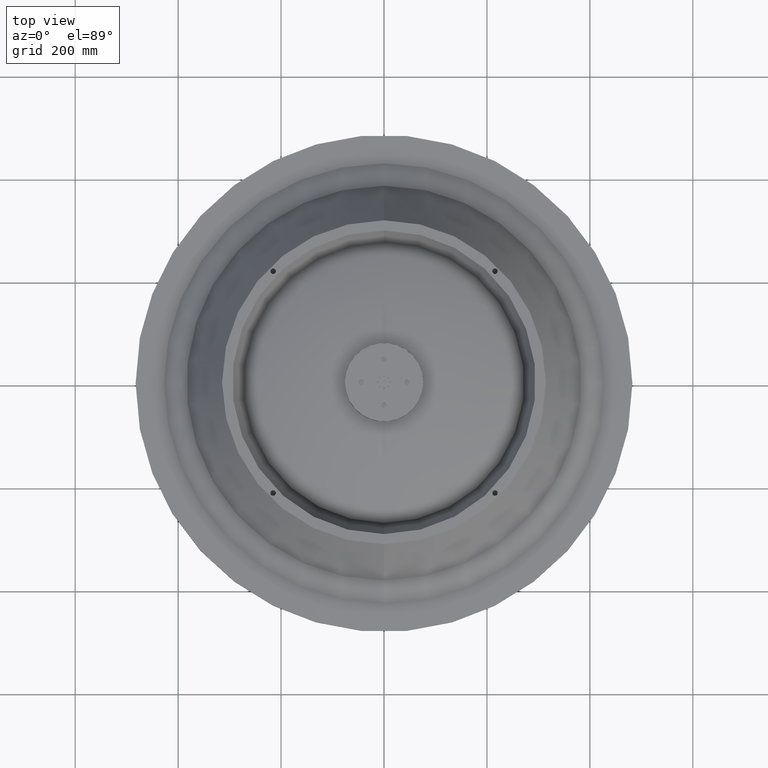
[diagram: clean part render]
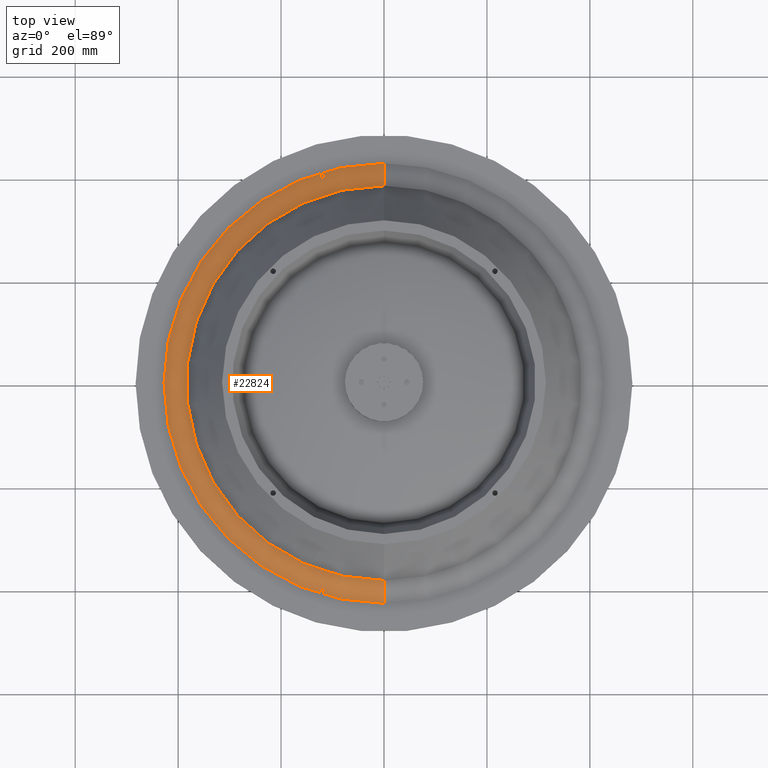
[diagram: same view with one face highlighted and labeled with its STEP entity id]
A machine part, top view. The second image highlights one B-rep face of the part: STEP entity #22824.
In plain terms, the highlighted face is a freeform B-spline surface patch.
Its self-contained STEP definition (entity closure, byte-faithful):
#158 = EDGE_CURVE ( 'NONE', #45077, #38707, #12042, .T. ) ;
#951 = DIRECTION ( 'NONE',  ( 1.000000000000000000, 0.0000000000000000000, 0.0000000000000000000 ) ) ;
#2391 = EDGE_LOOP ( 'NONE', ( #4343, #15211, #7643, #36995 ) ) ;
#2535 = CARTESIAN_POINT ( 'NONE',  ( -30.99803846209322000, -15.49901923104660600, -3.463378942795172700 ) ) ;
#2831 = CARTESIAN_POINT ( 'NONE',  ( -33.45328065928504200, -16.72664032964251000, -4.129492428027307800 ) ) ;
#2982 = CARTESIAN_POINT ( 'NONE',  ( -3.747250116607733500E-015, -15.29930964265253800, -3.360437510372523900 ) ) ;
#3114 = CARTESIAN_POINT ( 'NONE',  ( 0.0000000000000000000, 15.09999999999999400, -3.259194673605343900 ) ) ;
#3517 = CIRCLE ( 'NONE', #39050, 16.82639142072594400 ) ;
#3581 = CARTESIAN_POINT ( 'NONE',  ( 1.999752525557420300E-015, 16.32921857101758400, -3.907523743979159500 ) ) ;
#3634 = CIRCLE ( 'NONE', #27620, 15.09999999999999400 ) ;
#4343 = ORIENTED_EDGE ( 'NONE', *, *, #42444, .T. ) ;
#4372 = CARTESIAN_POINT ( 'NONE',  ( 0.0000000000000000000, 0.0000000000000000000, -4.186136240092020300 ) ) ;
#5696 = CARTESIAN_POINT ( 'NONE',  ( 0.0000000000000000000, -16.82639142072594400, -4.186136240092020300 ) ) ;
#6297 = CARTESIAN_POINT ( 'NONE',  ( -30.33231657514251000, 15.16615828757126200, -3.292659555222817900 ) ) ;
#6602 = CARTESIAN_POINT ( 'NONE',  ( -32.65843714203515400, 16.32921857101758800, -3.907523743979159900 ) ) ;
#6749 = CARTESIAN_POINT ( 'NONE',  ( 2.028149220878582200E-015, 16.56109518508241200, -4.036270050176135300 ) ) ;
#7201 = CARTESIAN_POINT ( 'NONE',  ( 1.898082429122450800E-015, 15.49901923104661300, -3.463378942795177100 ) ) ;
#7643 = ORIENTED_EDGE ( 'NONE', *, *, #14352, .T. ) ;
#7843 = CARTESIAN_POINT ( 'NONE',  ( 0.0000000000000000000, -16.82639142072594400, -4.186136240092020300 ) ) ;
#8222 = DIRECTION ( 'NONE',  ( -0.0000000000000000000, 1.224646799147353700E-016, -1.000000000000000000 ) ) ;
#9717 = CARTESIAN_POINT ( 'NONE',  ( -33.65278284145188800, 16.82639142072595500, -4.186136240092021200 ) ) ;
#10023 = CARTESIAN_POINT ( 'NONE',  ( -32.65843714203516900, -16.32921857101757400, -3.907523743979155900 ) ) ;
#12042 = B_SPLINE_CURVE_WITH_KNOTS ( 'NONE', 4,
 ( #3114, #35193, #38939, #7201, #35669, #25063, #3581, #6749, #45988, #39106 ),
 .UNSPECIFIED., .F., .F.,
 ( 5, 1, 1, 1, 1, 1, 5 ),
 ( 0.7573288599453986700, 0.7716723940174782200, 0.7862341260190899300, 0.8007958580207017500, 0.8153575900223134500, 0.8299193220239251500, 0.8521109485560599600 ),
 .UNSPECIFIED. ) ;
#12969 =( BOUNDED_SURFACE ( )  B_SPLINE_SURFACE ( 4, 3, ( 
 ( #34584, #41037, #19587, #23238 ),
 ( #44768, #6297, #38341, #13143 ),
 ( #13604, #34755, #17049, #2982 ),
 ( #13753, #20983, #2535, #24162 ),
 ( #17199, #27764, #28066, #42408 ),
 ( #38659, #16899, #31312, #42263 ),
 ( #41959, #6602, #10023, #31151 ),
 ( #20514, #31462, #20836, #45542 ),
 ( #24458, #16743, #2831, #27910 ),
 ( #42113, #9717, #46004, #38813 ) ),
 .UNSPECIFIED., .F., .F., .F. ) 
 B_SPLINE_SURFACE_WITH_KNOTS ( ( 5, 1, 1, 1, 1, 1, 5 ),
 ( 4, 4 ),
 ( 0.7573288599453986700, 0.7716723940174782200, 0.7862341260190899300, 0.8007958580207017500, 0.8153575900223134500, 0.8299193220239251500, 0.8521109485560600700 ),
 ( 0.0000000000000000000, 1.000000000000000000 ),
 .UNSPECIFIED. ) 
 GEOMETRIC_REPRESENTATION_ITEM ( )  RATIONAL_B_SPLINE_SURFACE ( (
 ( 1.000000000000000000, 0.3333333333333334300, 0.3333333333333334300, 1.000000000000000000),
 ( 1.000000000000000000, 0.3333333333333334300, 0.3333333333333334300, 1.000000000000000000),
 ( 1.000000000000000000, 0.3333333333333334300, 0.3333333333333334300, 1.000000000000000000),
 ( 1.000000000000000000, 0.3333333333333334300, 0.3333333333333334300, 1.000000000000000000),
 ( 1.000000000000000000, 0.3333333333333334300, 0.3333333333333334300, 1.000000000000000000),
 ( 1.000000000000000000, 0.3333333333333334300, 0.3333333333333334300, 1.000000000000000000),
 ( 1.000000000000000000, 0.3333333333333334300, 0.3333333333333334300, 1.000000000000000000),
 ( 1.000000000000000000, 0.3333333333333334300, 0.3333333333333334300, 1.000000000000000000),
 ( 1.000000000000000000, 0.3333333333333334300, 0.3333333333333334300, 1.000000000000000000),
 ( 1.000000000000000000, 0.3333333333333334300, 0.3333333333333334300, 1.000000000000000000) ) ) 
 REPRESENTATION_ITEM ( '' )  SURFACE ( )  );
#13022 = CARTESIAN_POINT ( 'NONE',  ( 0.0000000000000000000, -15.16615828757126200, -3.292659555222816200 ) ) ;
#13143 = CARTESIAN_POINT ( 'NONE',  ( -3.714637440447249000E-015, -15.16615828757125700, -3.292659555222814400 ) ) ;
#13604 = CARTESIAN_POINT ( 'NONE',  ( 1.873625058303866800E-015, 15.29930964265253800, -3.360437510372527900 ) ) ;
#13753 = CARTESIAN_POINT ( 'NONE',  ( 1.898082429122450800E-015, 15.49901923104661300, -3.463378942795177100 ) ) ;
#14352 = EDGE_CURVE ( 'NONE', #38707, #37758, #3517, .T. ) ;
#15211 = ORIENTED_EDGE ( 'NONE', *, *, #158, .T. ) ;
#16743 = CARTESIAN_POINT ( 'NONE',  ( -33.45328065928503500, 16.72664032964252500, -4.129492428027311300 ) ) ;
#16899 = CARTESIAN_POINT ( 'NONE',  ( -32.06019464043160400, 16.03009732021580900, -3.744760524009676800 ) ) ;
#17049 = CARTESIAN_POINT ( 'NONE',  ( -30.59861928530507300, -15.29930964265253300, -3.360437510372523900 ) ) ;
#17073 = CARTESIAN_POINT ( 'NONE',  ( 0.0000000000000000000, -16.56109518508241500, -4.036270050176131700 ) ) ;
#17199 = CARTESIAN_POINT ( 'NONE',  ( 1.930605828463180600E-015, 15.76459294065312200, -3.602817504516575600 ) ) ;
#18837 = CARTESIAN_POINT ( 'NONE',  ( 0.0000000000000000000, 3.991362324828891200E-016, -3.259194673605346100 ) ) ;
#18855 = B_SPLINE_CURVE_WITH_KNOTS ( 'NONE', 4,
 ( #20537, #13022, #24016, #23859, #27484, #27636, #45565, #17073, #23546, #5696 ),
 .UNSPECIFIED., .F., .F.,
 ( 5, 1, 1, 1, 1, 1, 5 ),
 ( 0.7573288599453988900, 0.7716723940174782200, 0.7862341260190899300, 0.8007958580207017500, 0.8153575900223134500, 0.8299193220239251500, 0.8521109485560600700 ),
 .UNSPECIFIED. ) ;
#19587 = CARTESIAN_POINT ( 'NONE',  ( -30.19999999999998200, -15.09999999999998500, -3.259194673605344300 ) ) ;
#20514 = CARTESIAN_POINT ( 'NONE',  ( 2.028149220878581800E-015, 16.56109518508241200, -4.036270050176136200 ) ) ;
#20537 = CARTESIAN_POINT ( 'NONE',  ( 1.849216666712502600E-015, -15.09999999999999400, -3.259194673605348300 ) ) ;
#20836 = CARTESIAN_POINT ( 'NONE',  ( -33.12219037016482300, -16.56109518508240400, -4.036270050176132600 ) ) ;
#20983 = CARTESIAN_POINT ( 'NONE',  ( -30.99803846209322000, 15.49901923104661700, -3.463378942795177600 ) ) ;
#21160 = CARTESIAN_POINT ( 'NONE',  ( 2.060638639459253700E-015, 16.82639142072594400, -4.186136240092020300 ) ) ;
#22166 = DIRECTION ( 'NONE',  ( 0.0000000000000000000, 1.000000000000000000, 1.085502514038780400E-016 ) ) ;
#22399 = DIRECTION ( 'NONE',  ( -0.0000000000000000000, -0.0000000000000000000, 1.000000000000000000 ) ) ;
#22824 = ADVANCED_FACE ( 'NONE', ( #30067 ), #12969, .T. ) ;
#23238 = CARTESIAN_POINT ( 'NONE',  ( -3.698433333425004300E-015, -15.09999999999999100, -3.259194673605344300 ) ) ;
#23546 = CARTESIAN_POINT ( 'NONE',  ( 0.0000000000000000000, -16.72664032964252500, -4.129492428027306000 ) ) ;
#23859 = CARTESIAN_POINT ( 'NONE',  ( 0.0000000000000000000, -15.49901923104661500, -3.463378942795174000 ) ) ;
#24016 = CARTESIAN_POINT ( 'NONE',  ( 0.0000000000000000000, -15.29930964265254400, -3.360437510372525200 ) ) ;
#24162 = CARTESIAN_POINT ( 'NONE',  ( -3.796164858244901700E-015, -15.49901923104661300, -3.463378942795172700 ) ) ;
#24458 = CARTESIAN_POINT ( 'NONE',  ( 2.048422654018574800E-015, 16.72664032964252100, -4.129492428027312200 ) ) ;
#24966 = CARTESIAN_POINT ( 'NONE',  ( 0.0000000000000000000, 15.09999999999999400, -3.259194673605343900 ) ) ;
#25063 = CARTESIAN_POINT ( 'NONE',  ( 1.963120737322284700E-015, 16.03009732021580500, -3.744760524009677300 ) ) ;
#26525 = VERTEX_POINT ( 'NONE', #34079 ) ;
#27484 = CARTESIAN_POINT ( 'NONE',  ( 0.0000000000000000000, -15.76459294065312200, -3.602817504516571100 ) ) ;
#27620 = AXIS2_PLACEMENT_3D ( 'NONE', #18837, #8222, #22166 ) ;
#27636 = CARTESIAN_POINT ( 'NONE',  ( 0.0000000000000000000, -16.03009732021580500, -3.744760524009672900 ) ) ;
#27764 = CARTESIAN_POINT ( 'NONE',  ( -31.52918588130623700, 15.76459294065312900, -3.602817504516575600 ) ) ;
#27910 = CARTESIAN_POINT ( 'NONE',  ( -4.096845308037148800E-015, -16.72664032964252500, -4.129492428027307800 ) ) ;
#28066 = CARTESIAN_POINT ( 'NONE',  ( -31.52918588130624000, -15.76459294065311500, -3.602817504516571600 ) ) ;
#30067 = FACE_OUTER_BOUND ( 'NONE', #2391, .T. ) ;
#30631 = EDGE_CURVE ( 'NONE', #26525, #37758, #18855, .T. ) ;
#31151 = CARTESIAN_POINT ( 'NONE',  ( -3.999505051114840600E-015, -16.32921857101758400, -3.907523743979155900 ) ) ;
#31312 = CARTESIAN_POINT ( 'NONE',  ( -32.06019464043160400, -16.03009732021579500, -3.744760524009672900 ) ) ;
#31462 = CARTESIAN_POINT ( 'NONE',  ( -33.12219037016481600, 16.56109518508241900, -4.036270050176136200 ) ) ;
#34079 = CARTESIAN_POINT ( 'NONE',  ( 1.849216666712502600E-015, -15.09999999999999400, -3.259194673605348300 ) ) ;
#34584 = CARTESIAN_POINT ( 'NONE',  ( 1.849216666712502200E-015, 15.09999999999999100, -3.259194673605348300 ) ) ;
#34755 = CARTESIAN_POINT ( 'NONE',  ( -30.59861928530507300, 15.29930964265254200, -3.360437510372527900 ) ) ;
#35193 = CARTESIAN_POINT ( 'NONE',  ( 1.857318720223624500E-015, 15.16615828757125700, -3.292659555222818400 ) ) ;
#35669 = CARTESIAN_POINT ( 'NONE',  ( 1.930605828463180600E-015, 15.76459294065312200, -3.602817504516575600 ) ) ;
#36995 = ORIENTED_EDGE ( 'NONE', *, *, #30631, .F. ) ;
#37758 = VERTEX_POINT ( 'NONE', #7843 ) ;
#38341 = CARTESIAN_POINT ( 'NONE',  ( -30.33231657514251000, -15.16615828757125200, -3.292659555222814800 ) ) ;
#38659 = CARTESIAN_POINT ( 'NONE',  ( 1.963120737322284700E-015, 16.03009732021580500, -3.744760524009677300 ) ) ;
#38707 = VERTEX_POINT ( 'NONE', #21160 ) ;
#38813 = CARTESIAN_POINT ( 'NONE',  ( -4.121277278918504300E-015, -16.82639142072595100, -4.186136240092017700 ) ) ;
#38939 = CARTESIAN_POINT ( 'NONE',  ( 1.873625058303866800E-015, 15.29930964265253800, -3.360437510372527900 ) ) ;
#39050 = AXIS2_PLACEMENT_3D ( 'NONE', #4372, #22399, #951 ) ;
#39106 = CARTESIAN_POINT ( 'NONE',  ( 2.060638639459253700E-015, 16.82639142072594400, -4.186136240092020300 ) ) ;
#41037 = CARTESIAN_POINT ( 'NONE',  ( -30.19999999999997100, 15.09999999999999600, -3.259194673605348300 ) ) ;
#41959 = CARTESIAN_POINT ( 'NONE',  ( 1.999752525557420300E-015, 16.32921857101758400, -3.907523743979159900 ) ) ;
#42113 = CARTESIAN_POINT ( 'NONE',  ( 2.060638639459252200E-015, 16.82639142072595100, -4.186136240092022100 ) ) ;
#42263 = CARTESIAN_POINT ( 'NONE',  ( -3.926241474644569500E-015, -16.03009732021580500, -3.744760524009672900 ) ) ;
#42408 = CARTESIAN_POINT ( 'NONE',  ( -3.861211656926361200E-015, -15.76459294065312200, -3.602817504516571100 ) ) ;
#42444 = EDGE_CURVE ( 'NONE', #26525, #45077, #3634, .T. ) ;
#44768 = CARTESIAN_POINT ( 'NONE',  ( 1.857318720223624500E-015, 15.16615828757125700, -3.292659555222818400 ) ) ;
#45077 = VERTEX_POINT ( 'NONE', #24966 ) ;
#45542 = CARTESIAN_POINT ( 'NONE',  ( -4.056298441757163600E-015, -16.56109518508241200, -4.036270050176131700 ) ) ;
#45565 = CARTESIAN_POINT ( 'NONE',  ( 0.0000000000000000000, -16.32921857101758400, -3.907523743979155900 ) ) ;
#45988 = CARTESIAN_POINT ( 'NONE',  ( 2.048422654018574400E-015, 16.72664032964252100, -4.129492428027310400 ) ) ;
#46004 = CARTESIAN_POINT ( 'NONE',  ( -33.65278284145190200, -16.82639142072594400, -4.186136240092017700 ) ) ;